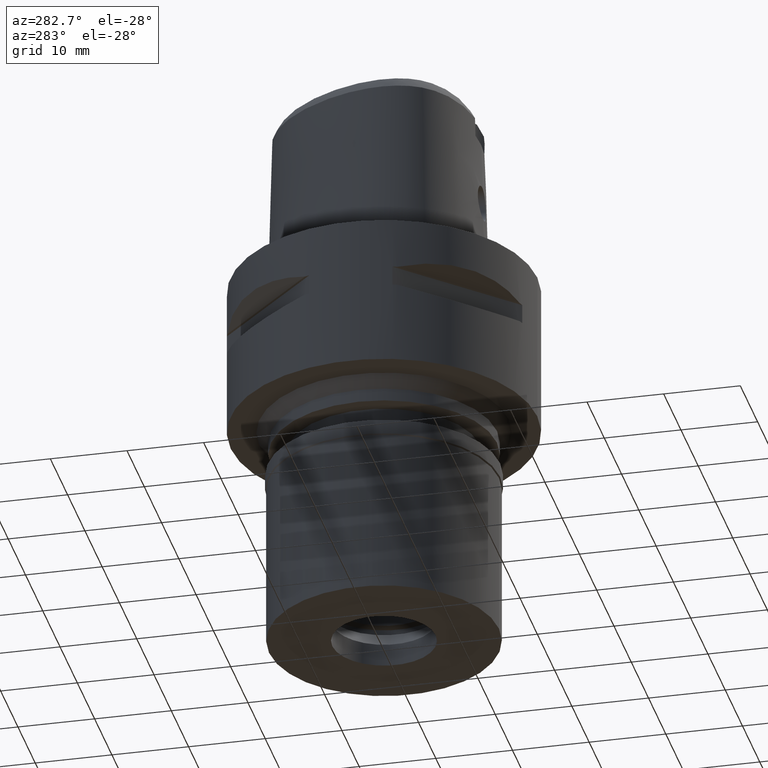
[diagram: clean part render]
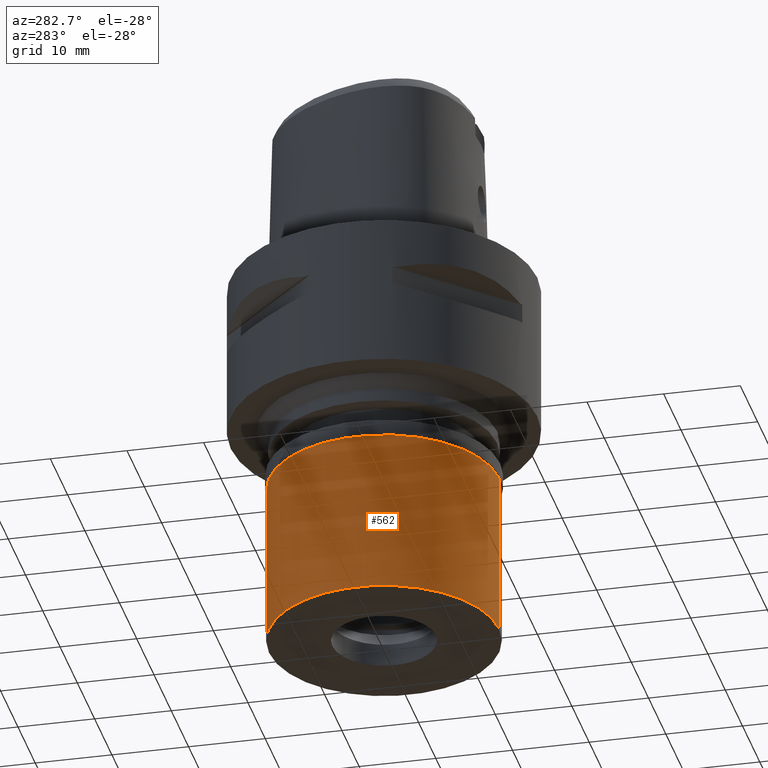
[diagram: same view with one face highlighted and labeled with its STEP entity id]
A machine part, auxiliary view. The second image highlights one B-rep face of the part: STEP entity #562.
In plain terms, the highlighted cylindrical surface (partial cylindrical patch) has radius 15 mm, axis along (0, 0, -1).
Its self-contained STEP definition (entity closure, byte-faithful):
#254 = VERTEX_POINT ( 'NONE', #3476 ) ;
#285 = FACE_OUTER_BOUND ( 'NONE', #998, .T. ) ;
#500 = VERTEX_POINT ( 'NONE', #2077 ) ;
#533 = CARTESIAN_POINT ( 'NONE',  ( 0.0000000000000000000, -15.00000000000000000, -2.100000000000000089 ) ) ;
#562 = ADVANCED_FACE ( 'NONE', ( #285 ), #3436, .T. ) ;
#612 = AXIS2_PLACEMENT_3D ( 'NONE', #3079, #1288, #3133 ) ;
#709 = EDGE_CURVE ( 'NONE', #500, #254, #3376, .T. ) ;
#998 = EDGE_LOOP ( 'NONE', ( #2569, #2156, #1887, #2129 ) ) ;
#1056 = DIRECTION ( 'NONE',  ( 0.0000000000000000000, 0.0000000000000000000, 1.000000000000000000 ) ) ;
#1068 = VECTOR ( 'NONE', #3579, 1000.000000000000000 ) ;
#1186 = CARTESIAN_POINT ( 'NONE',  ( 0.0000000000000000000, 15.00000000000000000, -2.100000000000000089 ) ) ;
#1263 = EDGE_CURVE ( 'NONE', #1764, #500, #4600, .T. ) ;
#1288 = DIRECTION ( 'NONE',  ( 0.0000000000000000000, 0.0000000000000000000, -1.000000000000000000 ) ) ;
#1366 = AXIS2_PLACEMENT_3D ( 'NONE', #3261, #2537, #3993 ) ;
#1733 = EDGE_CURVE ( 'NONE', #4319, #1764, #3995, .T. ) ;
#1764 = VERTEX_POINT ( 'NONE', #1186 ) ;
#1887 = ORIENTED_EDGE ( 'NONE', *, *, #1733, .T. ) ;
#2077 = CARTESIAN_POINT ( 'NONE',  ( 0.0000000000000000000, 15.00000000000000000, -23.80000000000000071 ) ) ;
#2129 = ORIENTED_EDGE ( 'NONE', *, *, #1263, .T. ) ;
#2156 = ORIENTED_EDGE ( 'NONE', *, *, #2448, .F. ) ;
#2231 = AXIS2_PLACEMENT_3D ( 'NONE', #2528, #1056, #2449 ) ;
#2305 = VECTOR ( 'NONE', #2462, 1000.000000000000000 ) ;
#2448 = EDGE_CURVE ( 'NONE', #4319, #254, #2518, .T. ) ;
#2449 = DIRECTION ( 'NONE',  ( 0.0000000000000000000, 1.000000000000000000, 0.0000000000000000000 ) ) ;
#2462 = DIRECTION ( 'NONE',  ( 0.0000000000000000000, 0.0000000000000000000, -1.000000000000000000 ) ) ;
#2518 = LINE ( 'NONE', #4643, #1068 ) ;
#2523 = CARTESIAN_POINT ( 'NONE',  ( 0.0000000000000000000, 15.00000000000000000, -2.100000000000000089 ) ) ;
#2528 = CARTESIAN_POINT ( 'NONE',  ( 0.0000000000000000000, 0.0000000000000000000, -23.80000000000000071 ) ) ;
#2537 = DIRECTION ( 'NONE',  ( 0.0000000000000000000, 0.0000000000000000000, -1.000000000000000000 ) ) ;
#2569 = ORIENTED_EDGE ( 'NONE', *, *, #709, .T. ) ;
#3079 = CARTESIAN_POINT ( 'NONE',  ( 0.0000000000000000000, 0.0000000000000000000, 0.0000000000000000000 ) ) ;
#3133 = DIRECTION ( 'NONE',  ( 0.0000000000000000000, -1.000000000000000000, 0.0000000000000000000 ) ) ;
#3261 = CARTESIAN_POINT ( 'NONE',  ( 0.0000000000000000000, 0.0000000000000000000, -2.100000000000000089 ) ) ;
#3376 = CIRCLE ( 'NONE', #2231, 15.00000000000000000 ) ;
#3436 = CYLINDRICAL_SURFACE ( 'NONE', #612, 15.00000000000000000 ) ;
#3476 = CARTESIAN_POINT ( 'NONE',  ( 0.0000000000000000000, -15.00000000000000000, -23.80000000000000071 ) ) ;
#3579 = DIRECTION ( 'NONE',  ( 0.0000000000000000000, 0.0000000000000000000, -1.000000000000000000 ) ) ;
#3993 = DIRECTION ( 'NONE',  ( 0.0000000000000000000, -1.000000000000000000, 0.0000000000000000000 ) ) ;
#3995 = CIRCLE ( 'NONE', #1366, 15.00000000000000000 ) ;
#4319 = VERTEX_POINT ( 'NONE', #533 ) ;
#4600 = LINE ( 'NONE', #2523, #2305 ) ;
#4643 = CARTESIAN_POINT ( 'NONE',  ( 0.0000000000000000000, -15.00000000000000000, -2.100000000000000089 ) ) ;